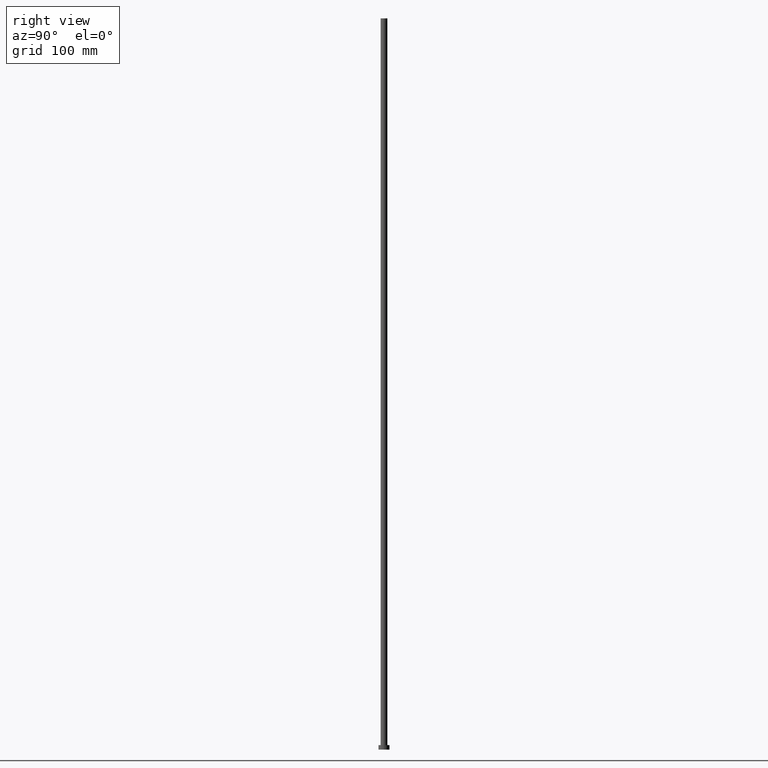
[diagram: clean part render]
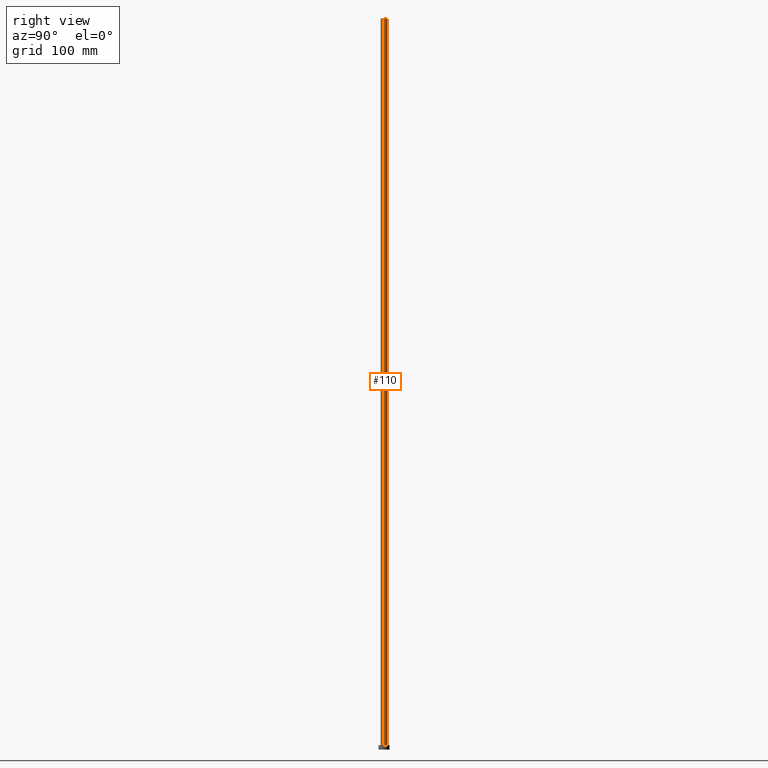
[diagram: same view with one face highlighted and labeled with its STEP entity id]
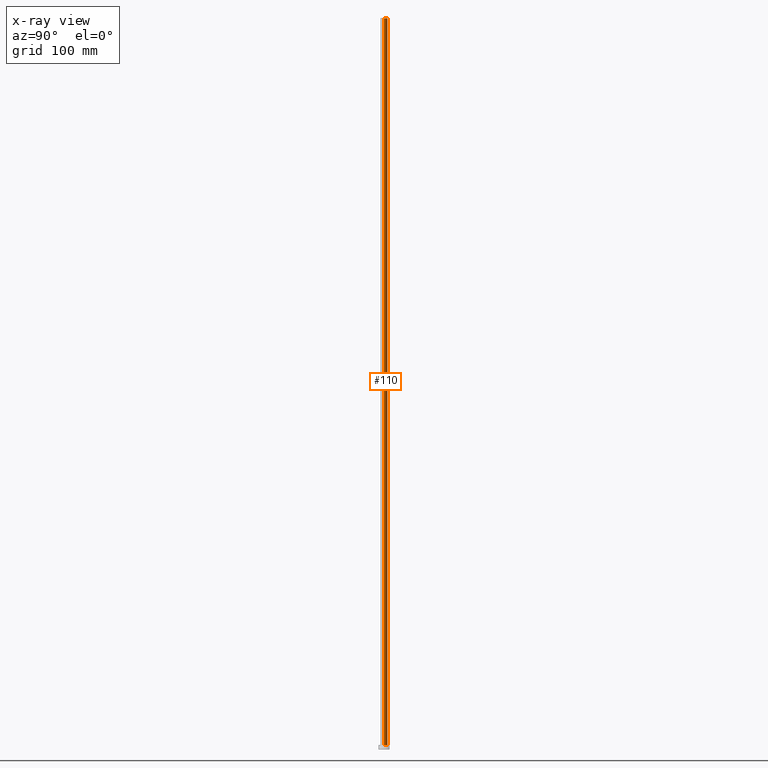
[diagram: x-ray of the same camera — body ghosted, the highlighted face saturated]
A machine part, right view. The second image highlights one B-rep face of the part: STEP entity #110.
The next image is the same camera in x-ray: the body ghosted, the highlighted face saturated — about 0% of this face is hidden behind the body in this view.
In plain terms, the highlighted cylindrical surface (edge-blend (fillet) strip) has radius 3.75 mm, axis along (-0, -0, -1).
Its self-contained STEP definition (entity closure, byte-faithful):
#4 = CARTESIAN_POINT ( 'NONE',  ( -3.750000000000000000, 0.000000000000000000, 800.0000000000000000 ) ) ;
#15 = ORIENTED_EDGE ( 'NONE', *, *, #123, .T. ) ;
#16 = EDGE_CURVE ( 'NONE', #208, #165, #21, .T. ) ;
#21 = CIRCLE ( 'NONE', #175, 3.750000000000000000 ) ;
#32 = AXIS2_PLACEMENT_3D ( 'NONE', #216, #235, #37 ) ;
#37 = DIRECTION ( 'NONE',  ( 1.000000000000000000, 0.000000000000000000, 0.000000000000000000 ) ) ;
#39 = CARTESIAN_POINT ( 'NONE',  ( 3.750000000000000000, 4.592425496802573972E-16, 800.0000000000000000 ) ) ;
#49 = CARTESIAN_POINT ( 'NONE',  ( 0.000000000000000000, 0.000000000000000000, 800.0000000000000000 ) ) ;
#51 = DIRECTION ( 'NONE',  ( 0.000000000000000000, 0.000000000000000000, 1.000000000000000000 ) ) ;
#61 = ORIENTED_EDGE ( 'NONE', *, *, #75, .F. ) ;
#72 = CARTESIAN_POINT ( 'NONE',  ( -3.750000000000000000, 0.000000000000000000, 800.0000000000000000 ) ) ;
#74 = DIRECTION ( 'NONE',  ( -0.000000000000000000, -0.000000000000000000, -1.000000000000000000 ) ) ;
#75 = EDGE_CURVE ( 'NONE', #165, #95, #177, .T. ) ;
#80 = AXIS2_PLACEMENT_3D ( 'NONE', #49, #74, #140 ) ;
#95 = VERTEX_POINT ( 'NONE', #156 ) ;
#104 = CARTESIAN_POINT ( 'NONE',  ( 3.750000000000000000, 4.592425496802573972E-16, 800.0000000000000000 ) ) ;
#110 = ADVANCED_FACE ( 'NONE', ( #154 ), #238, .T. ) ;
#116 = DIRECTION ( 'NONE',  ( -0.000000000000000000, -0.000000000000000000, -1.000000000000000000 ) ) ;
#117 = ORIENTED_EDGE ( 'NONE', *, *, #138, .T. ) ;
#123 = EDGE_CURVE ( 'NONE', #252, #95, #213, .T. ) ;
#138 = EDGE_CURVE ( 'NONE', #208, #252, #219, .T. ) ;
#140 = DIRECTION ( 'NONE',  ( -1.000000000000000000, 0.000000000000000000, 0.000000000000000000 ) ) ;
#148 = CARTESIAN_POINT ( 'NONE',  ( 3.750000000000000000, 4.592425496802573972E-16, 5.000000000000000000 ) ) ;
#154 = FACE_OUTER_BOUND ( 'NONE', #173, .T. ) ;
#156 = CARTESIAN_POINT ( 'NONE',  ( -3.750000000000000000, 0.000000000000000000, 5.000000000000000000 ) ) ;
#165 = VERTEX_POINT ( 'NONE', #4 ) ;
#173 = EDGE_LOOP ( 'NONE', ( #229, #117, #15, #61 ) ) ;
#175 = AXIS2_PLACEMENT_3D ( 'NONE', #198, #51, #237 ) ;
#177 = LINE ( 'NONE', #72, #199 ) ;
#198 = CARTESIAN_POINT ( 'NONE',  ( 0.000000000000000000, 0.000000000000000000, 800.0000000000000000 ) ) ;
#199 = VECTOR ( 'NONE', #239, 1000.000000000000000 ) ;
#206 = VECTOR ( 'NONE', #116, 1000.000000000000000 ) ;
#208 = VERTEX_POINT ( 'NONE', #104 ) ;
#213 = CIRCLE ( 'NONE', #32, 3.750000000000000000 ) ;
#216 = CARTESIAN_POINT ( 'NONE',  ( 0.000000000000000000, 0.000000000000000000, 5.000000000000000000 ) ) ;
#219 = LINE ( 'NONE', #39, #206 ) ;
#229 = ORIENTED_EDGE ( 'NONE', *, *, #16, .F. ) ;
#235 = DIRECTION ( 'NONE',  ( 0.000000000000000000, 0.000000000000000000, 1.000000000000000000 ) ) ;
#237 = DIRECTION ( 'NONE',  ( 1.000000000000000000, 0.000000000000000000, 0.000000000000000000 ) ) ;
#238 = CYLINDRICAL_SURFACE ( 'NONE', #80, 3.750000000000000000 ) ;
#239 = DIRECTION ( 'NONE',  ( -0.000000000000000000, -0.000000000000000000, -1.000000000000000000 ) ) ;
#252 = VERTEX_POINT ( 'NONE', #148 ) ;